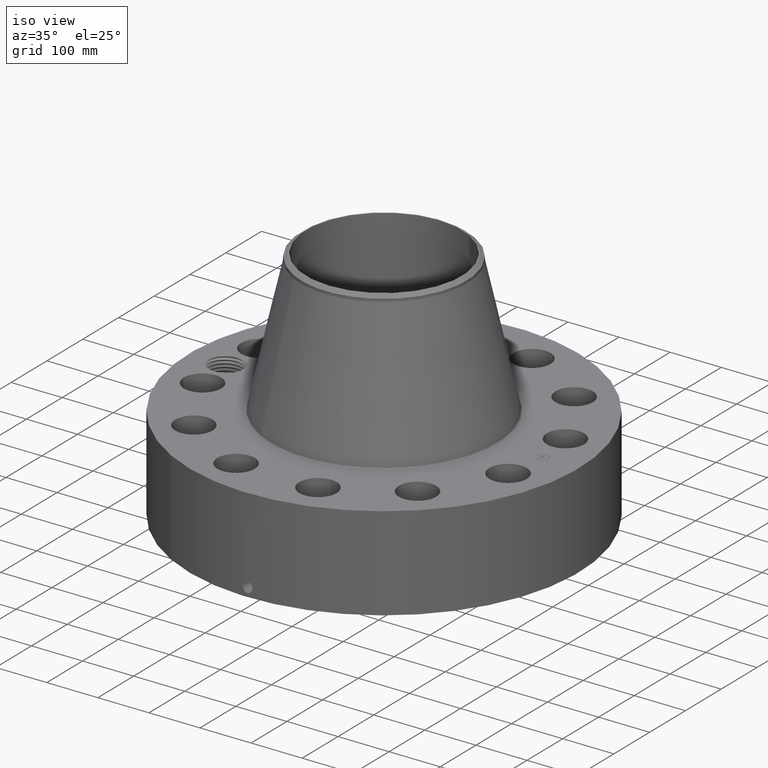
[diagram: clean part render]
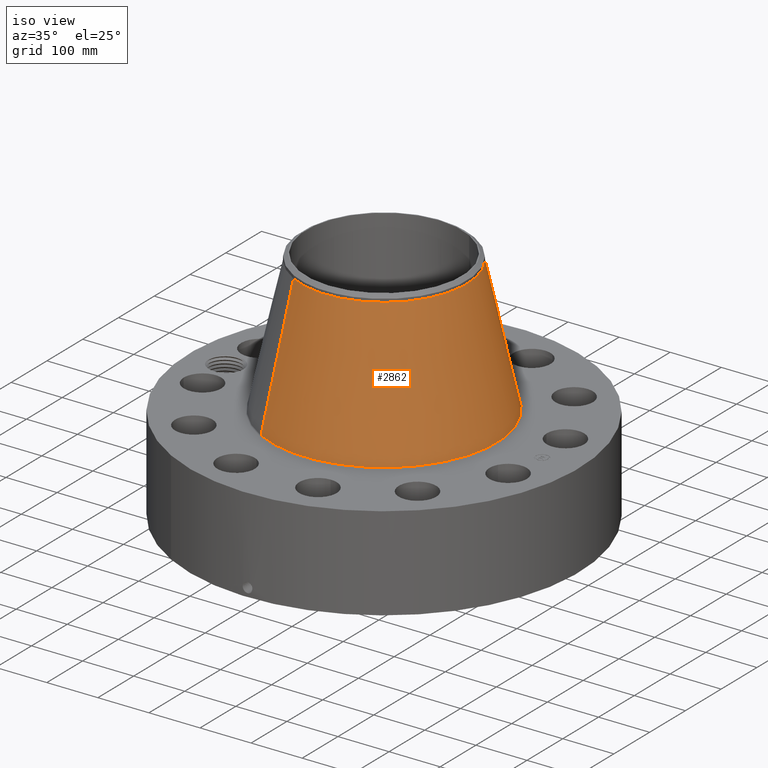
[diagram: same view with one face highlighted and labeled with its STEP entity id]
A machine part, iso view. The second image highlights one B-rep face of the part: STEP entity #2862.
In plain terms, the highlighted conical surface has half-angle 12.392 deg.
Its self-contained STEP definition (entity closure, byte-faithful):
#2088=AXIS2_PLACEMENT_3D('Circle Axis2P3D',#2086,#2087,$) ;
#2835=AXIS2_PLACEMENT_3D('Cone Axis2P3D',#2832,#2833,#2834) ;
#2846=AXIS2_PLACEMENT_3D('Circle Axis2P3D',#2844,#2845,$) ;
#2083=CARTESIAN_POINT('Vertex',(4.15628013541,7.60801975586,7.59424862235)) ;
#2086=CARTESIAN_POINT('Axis2P3D Location',(0.,0.,7.59424862235)) ;
#2090=CARTESIAN_POINT('Vertex',(-4.15628013541,-7.60801975586,7.59424862235)) ;
#2832=CARTESIAN_POINT('Axis2P3D Location',(0.,0.,18.036451355)) ;
#2837=CARTESIAN_POINT('Line Origine',(3.60630897201,6.60130429397,12.8153499887)) ;
#2841=CARTESIAN_POINT('Vertex',(3.05633780861,5.59458883207,18.036451355)) ;
#2844=CARTESIAN_POINT('Axis2P3D Location',(0.,0.,18.036451355)) ;
#2848=CARTESIAN_POINT('Vertex',(-3.05633780861,-5.59458883207,18.036451355)) ;
#2851=CARTESIAN_POINT('Line Origine',(-3.60630897201,-6.60130429397,12.8153499887)) ;
#2087=DIRECTION('Axis2P3D Direction',(0.,0.,-0.0393700787402)) ;
#2833=DIRECTION('Axis2P3D Direction',(0.,0.,-0.0393700787402)) ;
#2834=DIRECTION('Axis2P3D XDirection',(-0.0188750212049,-0.0345504945626,0.)) ;
#2838=DIRECTION('Vector Direction',(0.00405048166519,0.00741435695515,-0.0384528803762)) ;
#2845=DIRECTION('Axis2P3D Direction',(0.,0.,-0.0393700787402)) ;
#2852=DIRECTION('Vector Direction',(-0.00405048166519,-0.00741435695515,-0.0384528803762)) ;
#2839=VECTOR('Line Direction',#2838,0.0393700787402) ;
#2853=VECTOR('Line Direction',#2852,0.0393700787402) ;
#2857=ORIENTED_EDGE('',*,*,#2092,.F.) ;
#2858=ORIENTED_EDGE('',*,*,#2843,.T.) ;
#2859=ORIENTED_EDGE('',*,*,#2850,.T.) ;
#2860=ORIENTED_EDGE('',*,*,#2855,.F.) ;
#2862=ADVANCED_FACE('PartBody',(#2861),#2836,.T.) ;
#2089=CIRCLE('generated circle',#2088,8.66929231076) ;
#2847=CIRCLE('generated circle',#2846,6.37500000003) ;
#2836=CONICAL_SURFACE('Cone',#2835,6.37500000003,0.216276960238) ;
#2092=EDGE_CURVE('',#2084,#2091,#2089,.T.) ;
#2843=EDGE_CURVE('',#2084,#2842,#2840,.F.) ;
#2850=EDGE_CURVE('',#2842,#2849,#2847,.T.) ;
#2855=EDGE_CURVE('',#2091,#2849,#2854,.F.) ;
#2856=EDGE_LOOP('',(#2857,#2858,#2859,#2860)) ;
#2861=FACE_OUTER_BOUND('',#2856,.T.) ;
#2840=LINE('Line',#2837,#2839) ;
#2854=LINE('Line',#2851,#2853) ;
#2084=VERTEX_POINT('',#2083) ;
#2091=VERTEX_POINT('',#2090) ;
#2842=VERTEX_POINT('',#2841) ;
#2849=VERTEX_POINT('',#2848) ;